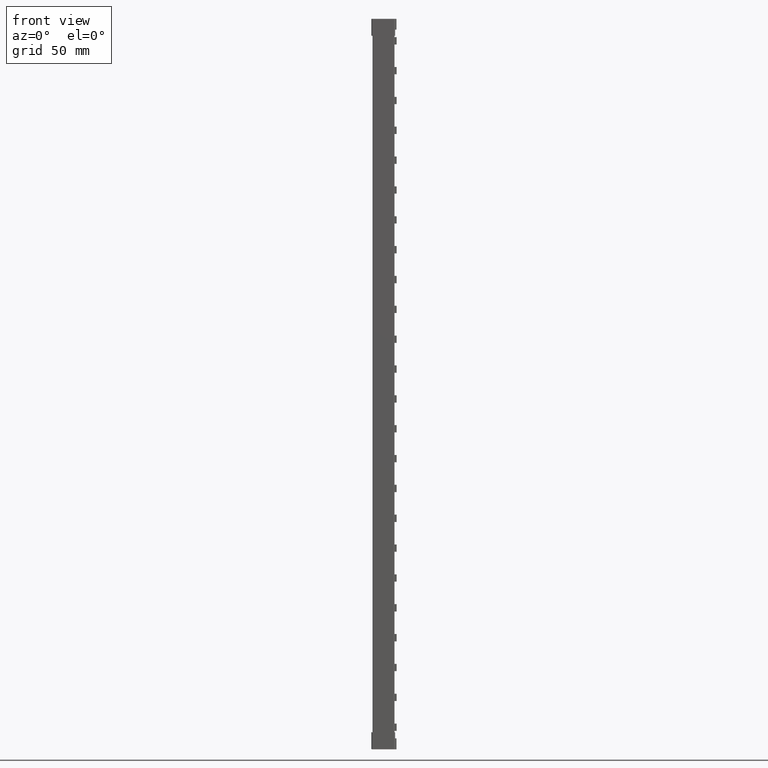
[diagram: clean part render]
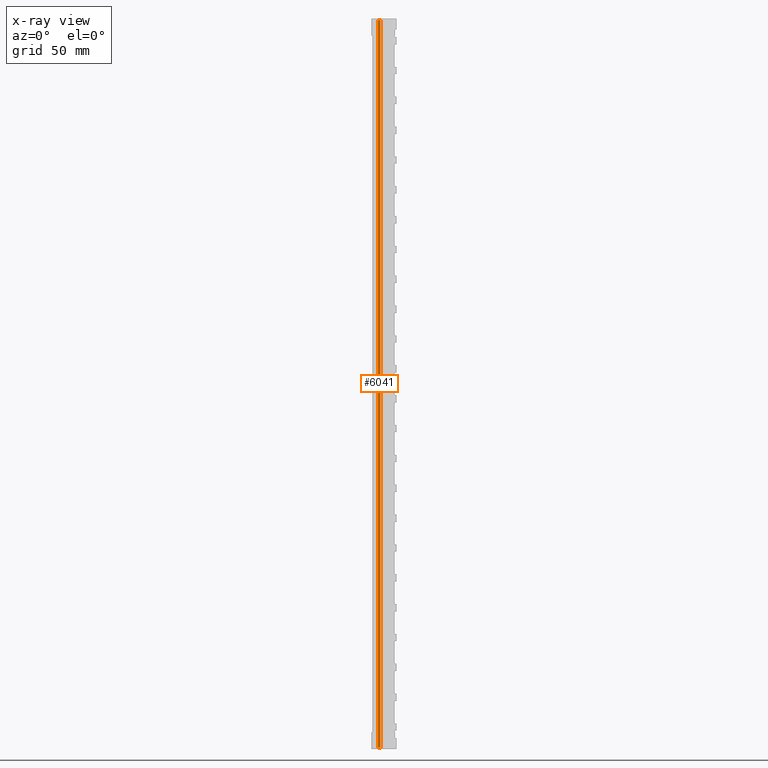
[diagram: x-ray — body ghosted, one internal face saturated and labeled with its STEP entity id]
A machine part, front view, then the same camera in x-ray: the body is ghosted and one INTERNAL B-rep face — a face not visible from any outside direction — is saturated and labeled: STEP entity #6041.
In plain terms, the highlighted cylindrical surface (edge-blend (fillet) strip) has radius 1.8 mm, axis along (0, 0, 1).
Its self-contained STEP definition (entity closure, byte-faithful):
#2528 = ORIENTED_EDGE ( 'NONE', *, *, #26522, .T. ) ;
#2541 = ORIENTED_EDGE ( 'NONE', *, *, #26510, .F. ) ;
#2638 = ORIENTED_EDGE ( 'NONE', *, *, #26623, .F. ) ;
#2661 = ORIENTED_EDGE ( 'NONE', *, *, #19057, .F. ) ;
#2682 = ORIENTED_EDGE ( 'NONE', *, *, #19095, .T. ) ;
#2694 = ORIENTED_EDGE ( 'NONE', *, *, #19071, .T. ) ;
#2705 = ORIENTED_EDGE ( 'NONE', *, *, #26532, .F. ) ;
#2713 = ORIENTED_EDGE ( 'NONE', *, *, #19091, .F. ) ;
#3197 = EDGE_LOOP ( 'NONE', ( #2705, #2528, #2541, #2638, #2694, #2661, #2682, #2713 ) ) ;
#3716 = AXIS2_PLACEMENT_3D ( 'NONE', #28435, #28411, #28413 ) ;
#6041 = ADVANCED_FACE ( 'NONE', ( #28422 ), #28443, .T. ) ;
#8611 = LINE ( 'NONE', #8812, #11331 ) ;
#8791 = DIRECTION ( 'NONE',  ( 3.864550688587075300E-026, -3.939912114750719300E-031, -1.000000000000000000 ) ) ;
#8812 = CARTESIAN_POINT ( 'NONE',  ( 2.699069104079016700, 5.096726813250046300, -204.5000000000000600 ) ) ;
#8827 = CARTESIAN_POINT ( 'NONE',  ( 3.299859964215051500, 3.399950350504472100, -210.0000000000000000 ) ) ;
#8849 = DIRECTION ( 'NONE',  ( -3.864550688587075300E-026, 3.939912114750719300E-031, 1.000000000000000000 ) ) ;
#8924 = DIRECTION ( 'NONE',  ( -1.000000000000000000, -9.637352644315594700E-016, 0.0000000000000000000 ) ) ;
#8931 = DIRECTION ( 'NONE',  ( 0.0000000000000000000, 0.0000000000000000000, -1.000000000000000000 ) ) ;
#8936 = CARTESIAN_POINT ( 'NONE',  ( 2.699069104079016700, 5.096726813250046300, -200.9000000000000100 ) ) ;
#8987 = LINE ( 'NONE', #9018, #18179 ) ;
#8998 = DIRECTION ( 'NONE',  ( -0.9426259865236238400, -0.3338506395536254300, -3.642812751878571300E-026 ) ) ;
#9018 = CARTESIAN_POINT ( 'NONE',  ( 2.698928813018487200, 5.096677126246981400, 199.0000000000000000 ) ) ;
#9022 = LINE ( 'NONE', #8936, #18189 ) ;
#9431 = CARTESIAN_POINT ( 'NONE',  ( 4.023610798727804500, 5.048035521101578400, -210.0000000000000000 ) ) ;
#9512 = CARTESIAN_POINT ( 'NONE',  ( 2.699069104079016700, 5.096726813250046300, -210.0000000000000000 ) ) ;
#9526 = CARTESIAN_POINT ( 'NONE',  ( 2.698928813018487200, 5.096677126246981400, -200.9000000000000100 ) ) ;
#9539 = CARTESIAN_POINT ( 'NONE',  ( 2.699069104079016700, 5.096726813250046300, -200.9000000000000100 ) ) ;
#10460 = CARTESIAN_POINT ( 'NONE',  ( 4.023610798727804500, 5.048035521101578400, 219.0000000000000000 ) ) ;
#10475 = CARTESIAN_POINT ( 'NONE',  ( 2.698928813018486700, 5.096677126246981400, 209.9000000000000100 ) ) ;
#10564 = CARTESIAN_POINT ( 'NONE',  ( 2.699069104079016700, 5.096726813250046300, 219.0000000000000000 ) ) ;
#10606 = CARTESIAN_POINT ( 'NONE',  ( 2.699069104079016700, 5.096726813250046300, 209.9000000000000100 ) ) ;
#11331 = VECTOR ( 'NONE', #8791, 1000.000000000000000 ) ;
#18174 = AXIS2_PLACEMENT_3D ( 'NONE', #8827, #8849, #8924 ) ;
#18179 = VECTOR ( 'NONE', #8931, 1000.000000000000000 ) ;
#18187 = CIRCLE ( 'NONE', #18174, 1.800000000000000000 ) ;
#18189 = VECTOR ( 'NONE', #8998, 1000.000000000000100 ) ;
#19057 = EDGE_CURVE ( 'NONE', #35859, #35871, #8611, .T. ) ;
#19071 = EDGE_CURVE ( 'NONE', #35269, #35871, #18187, .T. ) ;
#19091 = EDGE_CURVE ( 'NONE', #35152, #35875, #8987, .T. ) ;
#19095 = EDGE_CURVE ( 'NONE', #35859, #35875, #9022, .T. ) ;
#23079 = DIRECTION ( 'NONE',  ( 1.174935236590071400E-018, 5.041208906165829300E-019, 1.000000000000000000 ) ) ;
#23088 = LINE ( 'NONE', #23121, #30910 ) ;
#23121 = CARTESIAN_POINT ( 'NONE',  ( 4.023610798727805400, 5.048035521101578400, 219.0000000000000000 ) ) ;
#25158 = DIRECTION ( 'NONE',  ( -0.9426259865236238400, -0.3338506395536254300, 3.642812751878571300E-026 ) ) ;
#25647 = DIRECTION ( 'NONE',  ( 1.000000000000000000, 0.0000000000000000000, 0.0000000000000000000 ) ) ;
#25674 = CARTESIAN_POINT ( 'NONE',  ( 3.299859964215051900, 3.399950350504472100, 219.0000000000000000 ) ) ;
#25678 = DIRECTION ( 'NONE',  ( 0.0000000000000000000, 0.0000000000000000000, 1.000000000000000000 ) ) ;
#25699 = DIRECTION ( 'NONE',  ( 3.864550688587075300E-026, -3.939912114750719300E-031, 1.000000000000000000 ) ) ;
#25713 = CARTESIAN_POINT ( 'NONE',  ( 2.699069104079016700, 5.096726813250046300, 213.5000000000000600 ) ) ;
#25723 = LINE ( 'NONE', #25713, #30787 ) ;
#25739 = LINE ( 'NONE', #25751, #30839 ) ;
#25751 = CARTESIAN_POINT ( 'NONE',  ( 2.699069104079016700, 5.096726813250046300, 209.9000000000000100 ) ) ;
#26510 = EDGE_CURVE ( 'NONE', #35143, #35193, #30755, .T. ) ;
#26522 = EDGE_CURVE ( 'NONE', #35222, #35193, #25723, .T. ) ;
#26532 = EDGE_CURVE ( 'NONE', #35222, #35152, #25739, .T. ) ;
#26623 = EDGE_CURVE ( 'NONE', #35269, #35143, #23088, .T. ) ;
#28411 = DIRECTION ( 'NONE',  ( 1.174935236590071400E-018, 5.041208906165829300E-019, 1.000000000000000000 ) ) ;
#28413 = DIRECTION ( 'NONE',  ( 1.000000000000000000, 0.0000000000000000000, 0.0000000000000000000 ) ) ;
#28422 = FACE_OUTER_BOUND ( 'NONE', #3197, .T. ) ;
#28435 = CARTESIAN_POINT ( 'NONE',  ( 3.299859964215051900, 3.399950350504472100, 219.0101000000000200 ) ) ;
#28443 = CYLINDRICAL_SURFACE ( 'NONE', #3716, 1.799999999999999600 ) ;
#30755 = CIRCLE ( 'NONE', #30756, 1.799999999999999600 ) ;
#30756 = AXIS2_PLACEMENT_3D ( 'NONE', #25674, #25678, #25647 ) ;
#30787 = VECTOR ( 'NONE', #25699, 1000.000000000000000 ) ;
#30839 = VECTOR ( 'NONE', #25158, 1000.000000000000100 ) ;
#30910 = VECTOR ( 'NONE', #23079, 1000.000000000000000 ) ;
#35143 = VERTEX_POINT ( 'NONE', #10460 ) ;
#35152 = VERTEX_POINT ( 'NONE', #10475 ) ;
#35193 = VERTEX_POINT ( 'NONE', #10564 ) ;
#35222 = VERTEX_POINT ( 'NONE', #10606 ) ;
#35269 = VERTEX_POINT ( 'NONE', #9431 ) ;
#35859 = VERTEX_POINT ( 'NONE', #9539 ) ;
#35871 = VERTEX_POINT ( 'NONE', #9512 ) ;
#35875 = VERTEX_POINT ( 'NONE', #9526 ) ;